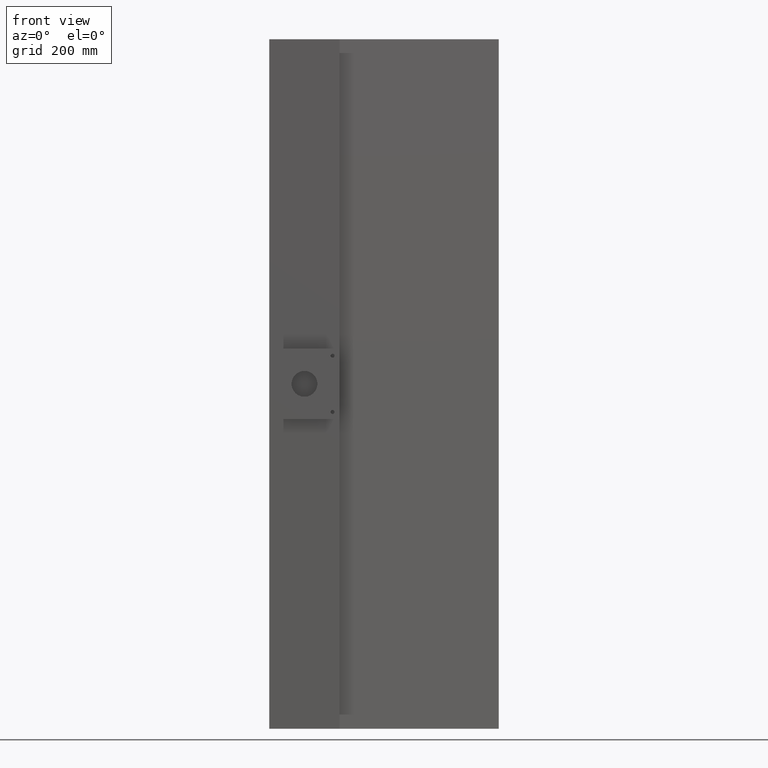
[diagram: clean part render]
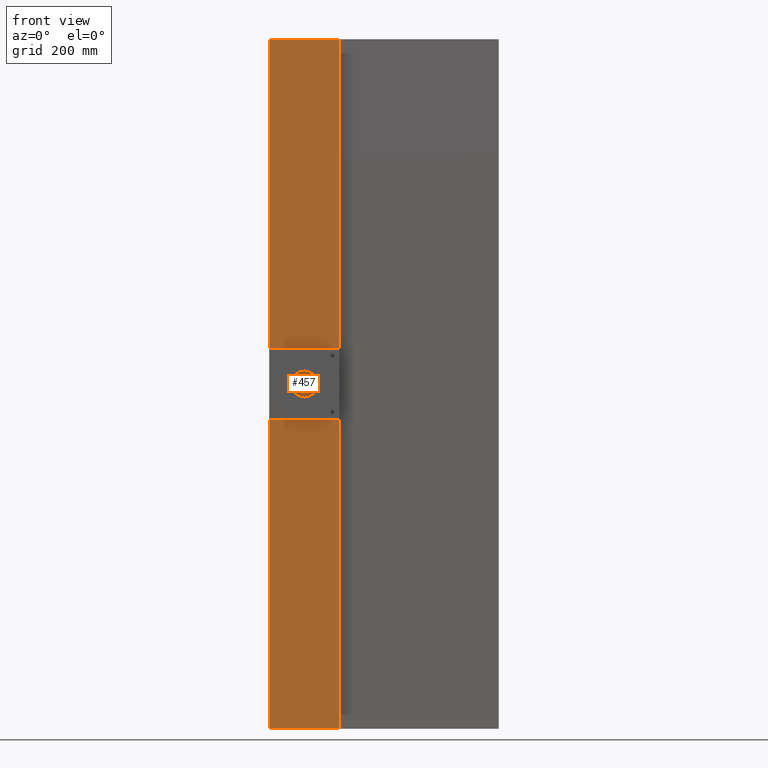
[diagram: same view with one face highlighted and labeled with its STEP entity id]
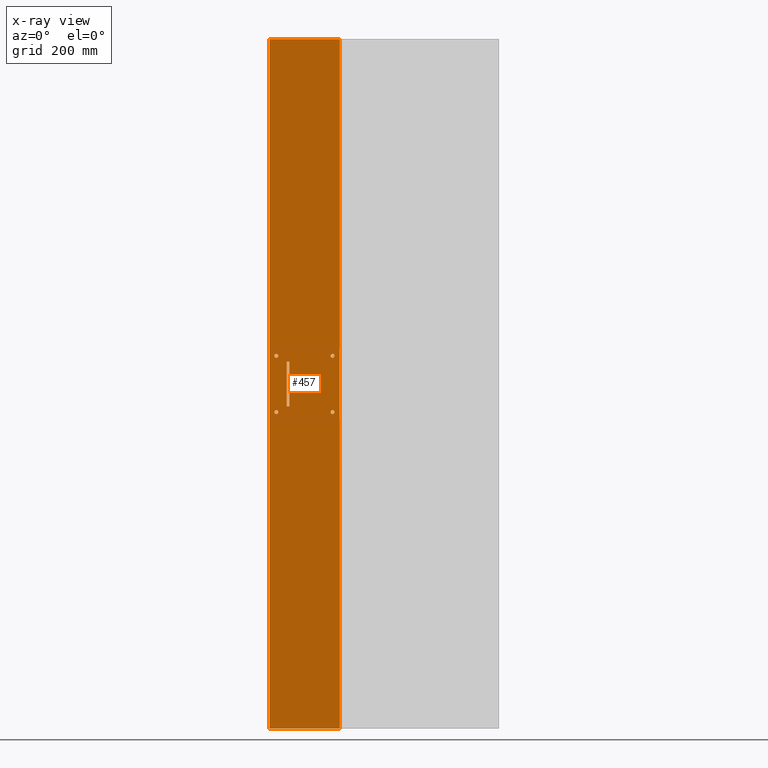
[diagram: x-ray of the same camera — body ghosted, the highlighted face saturated]
A machine part, front view. The second image highlights one B-rep face of the part: STEP entity #457.
The next image is the same camera in x-ray: the body ghosted, the highlighted face saturated — about 0% of this face is hidden behind the body in this view.
In plain terms, the highlighted planar face has unit normal (0, 1, -0).
Its self-contained STEP definition (entity closure, byte-faithful):
#4 = EDGE_LOOP ( 'NONE', ( #565, #2409 ) ) ;
#13 = EDGE_LOOP ( 'NONE', ( #1974, #2220 ) ) ;
#23 = LINE ( 'NONE', #2644, #173 ) ;
#26 = CARTESIAN_POINT ( 'NONE',  ( -95.11638246079658600, -110.0000000000000400, -50.00000000000004300 ) ) ;
#33 = VERTEX_POINT ( 'NONE', #1703 ) ;
#39 = AXIS2_PLACEMENT_3D ( 'NONE', #1775, #1973, #1680 ) ;
#110 = DIRECTION ( 'NONE',  ( -1.000000000000000000, -0.0000000000000000000, -0.0000000000000000000 ) ) ;
#122 = DIRECTION ( 'NONE',  ( 1.000000000000000000, 0.0000000000000000000, 0.0000000000000000000 ) ) ;
#144 = CIRCLE ( 'NONE', #601, 3.500000000000008400 ) ;
#150 = DIRECTION ( 'NONE',  ( 3.118604001756058900E-016, -1.000000000000000000, -0.0000000000000000000 ) ) ;
#173 = VECTOR ( 'NONE', #2120, 1000.000000000000000 ) ;
#248 = VERTEX_POINT ( 'NONE', #1866 ) ;
#297 = AXIS2_PLACEMENT_3D ( 'NONE', #2444, #2388, #2372 ) ;
#358 = EDGE_CURVE ( 'NONE', #1642, #248, #1344, .T. ) ;
#373 = DIRECTION ( 'NONE',  ( 3.118604001756058900E-016, -1.000000000000000000, 0.0000000000000000000 ) ) ;
#409 = LINE ( 'NONE', #1572, #820 ) ;
#457 = ADVANCED_FACE ( 'NONE', ( #1308, #1313, #1126, #1159, #1230, #1372 ), #754, .F. ) ;
#460 = VERTEX_POINT ( 'NONE', #590 ) ;
#461 = CARTESIAN_POINT ( 'NONE',  ( -73.11638246079655800, -110.0000000000000100, 613.0000000000000000 ) ) ;
#462 = CARTESIAN_POINT ( 'NONE',  ( 20.88361753920343500, -110.0000000000000100, 613.0000000000000000 ) ) ;
#465 = VERTEX_POINT ( 'NONE', #1998 ) ;
#467 = CARTESIAN_POINT ( 'NONE',  ( -104.1163824607965600, -110.0000000000000100, 613.0000000000000000 ) ) ;
#527 = VECTOR ( 'NONE', #1105, 1000.000000000000000 ) ;
#549 = EDGE_CURVE ( 'NONE', #2473, #465, #959, .T. ) ;
#565 = ORIENTED_EDGE ( 'NONE', *, *, #1941, .F. ) ;
#566 = LINE ( 'NONE', #461, #527 ) ;
#567 = CARTESIAN_POINT ( 'NONE',  ( -91.61638246079657200, -110.0000000000000400, 50.00000000000004300 ) ) ;
#569 = AXIS2_PLACEMENT_3D ( 'NONE', #1658, #1646, #1645 ) ;
#580 = CIRCLE ( 'NONE', #569, 3.500000000000003100 ) ;
#588 = EDGE_CURVE ( 'NONE', #460, #1642, #885, .T. ) ;
#590 = CARTESIAN_POINT ( 'NONE',  ( -68.11638246079655800, -110.0000000000000000, 40.00000000000003600 ) ) ;
#592 = CARTESIAN_POINT ( 'NONE',  ( 4.883617539203374500, -110.0000000000000100, -50.00000000000004300 ) ) ;
#601 = AXIS2_PLACEMENT_3D ( 'NONE', #2562, #1296, #2701 ) ;
#637 = EDGE_CURVE ( 'NONE', #2365, #2473, #566, .T. ) ;
#640 = DIRECTION ( 'NONE',  ( -1.000000000000000000, 0.0000000000000000000, 0.0000000000000000000 ) ) ;
#645 = CARTESIAN_POINT ( 'NONE',  ( 11.88361753920339000, -110.0000000000000100, 50.00000000000004300 ) ) ;
#703 = DIRECTION ( 'NONE',  ( -0.0000000000000000000, -0.0000000000000000000, -1.000000000000000000 ) ) ;
#734 = EDGE_CURVE ( 'NONE', #2739, #1474, #144, .T. ) ;
#754 = PLANE ( 'NONE',  #1374 ) ;
#820 = VECTOR ( 'NONE', #1564, 1000.000000000000000 ) ;
#885 = LINE ( 'NONE', #1795, #965 ) ;
#889 = VECTOR ( 'NONE', #2239, 1000.000000000000000 ) ;
#923 = EDGE_LOOP ( 'NONE', ( #1942, #2049, #2089, #1959 ) ) ;
#932 = CIRCLE ( 'NONE', #2862, 3.500000000000008400 ) ;
#937 = DIRECTION ( 'NONE',  ( 3.118604001756058900E-016, -1.000000000000000000, -0.0000000000000000000 ) ) ;
#959 = LINE ( 'NONE', #462, #889 ) ;
#961 = EDGE_CURVE ( 'NONE', #1474, #2739, #1737, .T. ) ;
#965 = VECTOR ( 'NONE', #703, 1000.000000000000000 ) ;
#1001 = EDGE_LOOP ( 'NONE', ( #1721, #1340 ) ) ;
#1010 = CARTESIAN_POINT ( 'NONE',  ( -104.1163824607965600, -110.0000000000000100, -613.0000000000000000 ) ) ;
#1015 = CARTESIAN_POINT ( 'NONE',  ( 8.383617539203383400, -110.0000000000000100, -50.00000000000004300 ) ) ;
#1028 = EDGE_CURVE ( 'NONE', #2365, #2652, #1362, .T. ) ;
#1063 = CIRCLE ( 'NONE', #2799, 3.500000000000008400 ) ;
#1083 = EDGE_CURVE ( 'NONE', #1370, #1506, #1086, .T. ) ;
#1086 = CIRCLE ( 'NONE', #297, 3.500000000000003100 ) ;
#1105 = DIRECTION ( 'NONE',  ( 1.000000000000000000, -0.0000000000000000000, -0.0000000000000000000 ) ) ;
#1126 = FACE_BOUND ( 'NONE', #4, .T. ) ;
#1159 = FACE_BOUND ( 'NONE', #1371, .T. ) ;
#1161 = DIRECTION ( 'NONE',  ( -1.000000000000000000, 0.0000000000000000000, 0.0000000000000000000 ) ) ;
#1193 = VECTOR ( 'NONE', #110, 1000.000000000000000 ) ;
#1216 = AXIS2_PLACEMENT_3D ( 'NONE', #2586, #2576, #1624 ) ;
#1230 = FACE_OUTER_BOUND ( 'NONE', #923, .T. ) ;
#1278 = EDGE_CURVE ( 'NONE', #460, #1644, #23, .T. ) ;
#1296 = DIRECTION ( 'NONE',  ( 3.118604001756058900E-016, -1.000000000000000000, 0.0000000000000000000 ) ) ;
#1297 = EDGE_CURVE ( 'NONE', #2601, #33, #2881, .T. ) ;
#1308 = FACE_BOUND ( 'NONE', #13, .T. ) ;
#1313 = FACE_BOUND ( 'NONE', #1001, .T. ) ;
#1332 = VECTOR ( 'NONE', #2422, 1000.000000000000000 ) ;
#1337 = CARTESIAN_POINT ( 'NONE',  ( 505.2325514354826100, -109.9999999999999700, -40.00000000000003600 ) ) ;
#1340 = ORIENTED_EDGE ( 'NONE', *, *, #1083, .F. ) ;
#1344 = LINE ( 'NONE', #1337, #1193 ) ;
#1362 = LINE ( 'NONE', #2435, #1332 ) ;
#1370 = VERTEX_POINT ( 'NONE', #26 ) ;
#1371 = EDGE_LOOP ( 'NONE', ( #2471, #1446 ) ) ;
#1372 = FACE_BOUND ( 'NONE', #1390, .T. ) ;
#1374 = AXIS2_PLACEMENT_3D ( 'NONE', #1823, #2265, #2105 ) ;
#1390 = EDGE_LOOP ( 'NONE', ( #1780, #2043, #2184, #1406 ) ) ;
#1406 = ORIENTED_EDGE ( 'NONE', *, *, #588, .T. ) ;
#1446 = ORIENTED_EDGE ( 'NONE', *, *, #2483, .F. ) ;
#1462 = EDGE_CURVE ( 'NONE', #2652, #465, #1693, .T. ) ;
#1474 = VERTEX_POINT ( 'NONE', #2082 ) ;
#1506 = VERTEX_POINT ( 'NONE', #1967 ) ;
#1564 = DIRECTION ( 'NONE',  ( -0.0000000000000000000, -0.0000000000000000000, -1.000000000000000000 ) ) ;
#1572 = CARTESIAN_POINT ( 'NONE',  ( -73.11638246079655800, -110.0000000000000100, 613.0000000000000000 ) ) ;
#1590 = CARTESIAN_POINT ( 'NONE',  ( -73.11638246079655800, -110.0000000000000100, 40.00000000000003600 ) ) ;
#1596 = CARTESIAN_POINT ( 'NONE',  ( -68.11638246079654400, -109.9999999999999700, -40.00000000000003600 ) ) ;
#1624 = DIRECTION ( 'NONE',  ( 1.000000000000000000, 0.0000000000000000000, 0.0000000000000000000 ) ) ;
#1630 = EDGE_CURVE ( 'NONE', #1506, #1370, #580, .T. ) ;
#1642 = VERTEX_POINT ( 'NONE', #1596 ) ;
#1644 = VERTEX_POINT ( 'NONE', #1590 ) ;
#1645 = DIRECTION ( 'NONE',  ( -1.000000000000000000, 0.0000000000000000000, 0.0000000000000000000 ) ) ;
#1646 = DIRECTION ( 'NONE',  ( 3.118604001756058900E-016, -1.000000000000000000, -0.0000000000000000000 ) ) ;
#1658 = CARTESIAN_POINT ( 'NONE',  ( -91.61638246079657200, -110.0000000000000400, -50.00000000000004300 ) ) ;
#1660 = VECTOR ( 'NONE', #2122, 1000.000000000000000 ) ;
#1668 = EDGE_CURVE ( 'NONE', #1644, #248, #409, .T. ) ;
#1680 = DIRECTION ( 'NONE',  ( 1.000000000000000000, 0.0000000000000000000, 0.0000000000000000000 ) ) ;
#1693 = LINE ( 'NONE', #2112, #1660 ) ;
#1703 = CARTESIAN_POINT ( 'NONE',  ( -95.11638246079658600, -110.0000000000000400, 50.00000000000004300 ) ) ;
#1721 = ORIENTED_EDGE ( 'NONE', *, *, #1630, .F. ) ;
#1737 = CIRCLE ( 'NONE', #1216, 3.500000000000008400 ) ;
#1775 = CARTESIAN_POINT ( 'NONE',  ( -91.61638246079657200, -110.0000000000000400, 50.00000000000004300 ) ) ;
#1780 = ORIENTED_EDGE ( 'NONE', *, *, #358, .T. ) ;
#1795 = CARTESIAN_POINT ( 'NONE',  ( -68.11638246079655800, -110.0000000000000000, 613.0000000000000000 ) ) ;
#1810 = VERTEX_POINT ( 'NONE', #2808 ) ;
#1823 = CARTESIAN_POINT ( 'NONE',  ( 20.88361753920343500, -110.0000000000000100, 613.0000000000000000 ) ) ;
#1866 = CARTESIAN_POINT ( 'NONE',  ( -73.11638246079655800, -109.9999999999999700, -40.00000000000003600 ) ) ;
#1941 = EDGE_CURVE ( 'NONE', #1810, #2173, #1063, .T. ) ;
#1942 = ORIENTED_EDGE ( 'NONE', *, *, #1028, .T. ) ;
#1959 = ORIENTED_EDGE ( 'NONE', *, *, #637, .F. ) ;
#1967 = CARTESIAN_POINT ( 'NONE',  ( -88.11638246079657200, -110.0000000000000400, -50.00000000000004300 ) ) ;
#1973 = DIRECTION ( 'NONE',  ( 3.118604001756058900E-016, -1.000000000000000000, 0.0000000000000000000 ) ) ;
#1974 = ORIENTED_EDGE ( 'NONE', *, *, #734, .F. ) ;
#1998 = CARTESIAN_POINT ( 'NONE',  ( 20.88361753920343500, -110.0000000000000100, -613.0000000000000000 ) ) ;
#2008 = CARTESIAN_POINT ( 'NONE',  ( -88.11638246079657200, -110.0000000000000400, 50.00000000000004300 ) ) ;
#2043 = ORIENTED_EDGE ( 'NONE', *, *, #1668, .F. ) ;
#2049 = ORIENTED_EDGE ( 'NONE', *, *, #1462, .T. ) ;
#2082 = CARTESIAN_POINT ( 'NONE',  ( 4.883617539203374500, -110.0000000000000100, 50.00000000000004300 ) ) ;
#2089 = ORIENTED_EDGE ( 'NONE', *, *, #549, .F. ) ;
#2105 = DIRECTION ( 'NONE',  ( -1.000000000000000000, 1.559302000878029000E-016, 0.0000000000000000000 ) ) ;
#2112 = CARTESIAN_POINT ( 'NONE',  ( 20.88361753920343500, -110.0000000000000100, -613.0000000000000000 ) ) ;
#2120 = DIRECTION ( 'NONE',  ( -1.000000000000000000, -0.0000000000000000000, -0.0000000000000000000 ) ) ;
#2122 = DIRECTION ( 'NONE',  ( 1.000000000000000000, -1.559302000878029000E-016, -0.0000000000000000000 ) ) ;
#2173 = VERTEX_POINT ( 'NONE', #592 ) ;
#2184 = ORIENTED_EDGE ( 'NONE', *, *, #1278, .F. ) ;
#2220 = ORIENTED_EDGE ( 'NONE', *, *, #961, .F. ) ;
#2239 = DIRECTION ( 'NONE',  ( -0.0000000000000000000, -0.0000000000000000000, -1.000000000000000000 ) ) ;
#2265 = DIRECTION ( 'NONE',  ( 1.559302000878029000E-016, 1.000000000000000000, -0.0000000000000000000 ) ) ;
#2365 = VERTEX_POINT ( 'NONE', #467 ) ;
#2372 = DIRECTION ( 'NONE',  ( -1.000000000000000000, 0.0000000000000000000, 0.0000000000000000000 ) ) ;
#2381 = AXIS2_PLACEMENT_3D ( 'NONE', #567, #373, #122 ) ;
#2388 = DIRECTION ( 'NONE',  ( 3.118604001756058900E-016, -1.000000000000000000, -0.0000000000000000000 ) ) ;
#2409 = ORIENTED_EDGE ( 'NONE', *, *, #2637, .F. ) ;
#2422 = DIRECTION ( 'NONE',  ( -0.0000000000000000000, -0.0000000000000000000, -1.000000000000000000 ) ) ;
#2435 = CARTESIAN_POINT ( 'NONE',  ( -104.1163824607965600, -110.0000000000000100, 613.0000000000000000 ) ) ;
#2444 = CARTESIAN_POINT ( 'NONE',  ( -91.61638246079657200, -110.0000000000000400, -50.00000000000004300 ) ) ;
#2471 = ORIENTED_EDGE ( 'NONE', *, *, #1297, .F. ) ;
#2473 = VERTEX_POINT ( 'NONE', #2843 ) ;
#2474 = CIRCLE ( 'NONE', #2381, 3.500000000000003100 ) ;
#2483 = EDGE_CURVE ( 'NONE', #33, #2601, #2474, .T. ) ;
#2562 = CARTESIAN_POINT ( 'NONE',  ( 8.383617539203383400, -110.0000000000000100, 50.00000000000004300 ) ) ;
#2576 = DIRECTION ( 'NONE',  ( 3.118604001756058900E-016, -1.000000000000000000, 0.0000000000000000000 ) ) ;
#2586 = CARTESIAN_POINT ( 'NONE',  ( 8.383617539203383400, -110.0000000000000100, 50.00000000000004300 ) ) ;
#2601 = VERTEX_POINT ( 'NONE', #2008 ) ;
#2632 = CARTESIAN_POINT ( 'NONE',  ( 8.383617539203383400, -110.0000000000000100, -50.00000000000004300 ) ) ;
#2637 = EDGE_CURVE ( 'NONE', #2173, #1810, #932, .T. ) ;
#2644 = CARTESIAN_POINT ( 'NONE',  ( 505.2325514354826100, -109.9999999999999700, 40.00000000000003600 ) ) ;
#2652 = VERTEX_POINT ( 'NONE', #1010 ) ;
#2701 = DIRECTION ( 'NONE',  ( 1.000000000000000000, 0.0000000000000000000, 0.0000000000000000000 ) ) ;
#2739 = VERTEX_POINT ( 'NONE', #645 ) ;
#2799 = AXIS2_PLACEMENT_3D ( 'NONE', #1015, #937, #1161 ) ;
#2808 = CARTESIAN_POINT ( 'NONE',  ( 11.88361753920339000, -110.0000000000000100, -50.00000000000004300 ) ) ;
#2843 = CARTESIAN_POINT ( 'NONE',  ( 20.88361753920343500, -110.0000000000000100, 613.0000000000000000 ) ) ;
#2862 = AXIS2_PLACEMENT_3D ( 'NONE', #2632, #150, #640 ) ;
#2881 = CIRCLE ( 'NONE', #39, 3.500000000000003100 ) ;